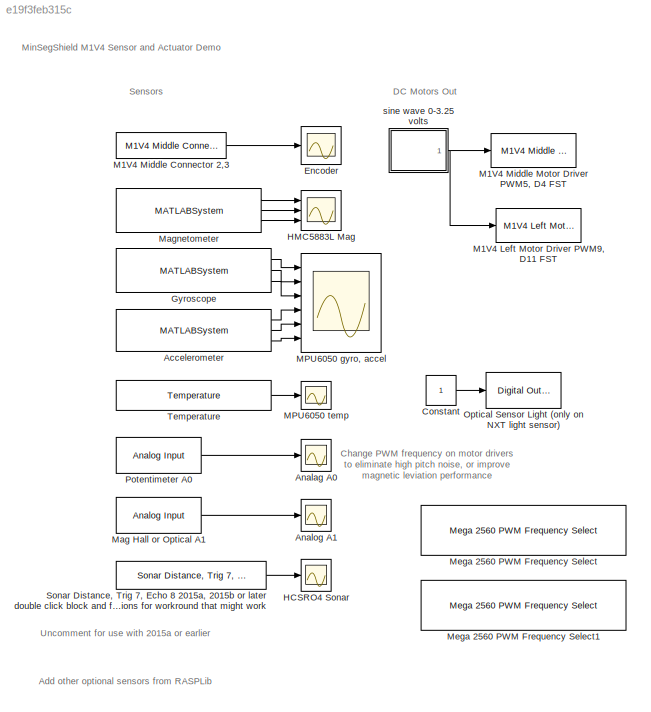
MODEL slx_e19f3feb315c
KIND model
CONFIG AbsTol = auto
CONFIG EnableMultiTasking = on
CONFIG FixedStep = auto
CONFIG MaxStep = auto
CONFIG MinStep = auto
CONFIG RelTol = 1e-3
CONFIG SampleTimeConstraint = Unconstrained
CONFIG Solver = ode45
CONFIG SolverName = ode45
CONFIG StartTime = 0.0
CONFIG StopTime = 10.0
BLOCK [MATLABSystem] Accelerometer
  MaskDisplay = disp('soMPU6050Accel');\nport_label('output',1,'xaccel');\nport_label('output',2,'yaccel');\nport_label('output',3,'zaccel');
  MaskType = soMPU6050Accel
  Ports = [0, 3]
  SimulateUsing = Code generation
  System = soMPU6050Accel
BLOCK [Scope] Analag A0
  Floating = off
  NumInputPorts = 1
  Ports = [1]
  ScopeSpecificationString = C++SS(StrPVP('Location','[188, 60, 612, 275]'),StrPVP('Open','off'),MxPVP('AxesTitles',53,'struct(''axes1'',''%<SignalLabel>'')'),MxPVP('ScopeGraphics',56,'struct(''FigureColor'',''[0.501960784313725 0.501960784313725 0.501960784313725]'',''AxesColor'',''[0 0 0]'',''AxesTickColor'',''[1 1 1]'',''LineColors'',''[1 1 0;1 0 1;0 1 1;1 0 0;0 1 0;0 0 1]'',''LineStyles'',''-|-|-|-|-|-'',''LineWidths'',''...<+352ch>
BLOCK [Scope] Analog A1
  Floating = off
  NumInputPorts = 1
  Ports = [1]
  ScopeSpecificationString = C++SS(StrPVP('Location','[188, 60, 612, 275]'),StrPVP('Open','off'),MxPVP('AxesTitles',53,'struct(''axes1'',''%<SignalLabel>'')'),MxPVP('ScopeGraphics',56,'struct(''FigureColor'',''[0.501960784313725 0.501960784313725 0.501960784313725]'',''AxesColor'',''[0 0 0]'',''AxesTickColor'',''[1 1 1]'',''LineColors'',''[1 1 0;1 0 1;0 1 1;1 0 0;0 1 0;0 0 1]'',''LineStyles'',''-|-|-|-|-|-'',''LineWidths'',''...<+352ch>
BLOCK [Constant] Constant
BLOCK [Scope] Encoder
  Floating = off
  NumInputPorts = 1
  Ports = [1]
  ScopeSpecificationString = C++SS(StrPVP('Location','[126, 60, 539, 390]'),StrPVP('Open','off'),MxPVP('AxesTitles',53,'struct(''axes1'',''%<SignalLabel>'')'),MxPVP('ScopeGraphics',56,'struct(''FigureColor'',''[0.5 0.5 0.5]'',''AxesColor'',''[0 0 0]'',''AxesTickColor'',''[1 1 1]'',''LineColors'',''[1 1 0;1 0 1;0 1 1;1 0 0;0 1 0;0 0 1]'',''LineStyles'',''-|-|-|-|-|-'',''LineWidths'',''[0.5 0.5 0.5 0.5 0.5 0.5]'',''MarkerStyles...<+277ch>
BLOCK [MATLABSystem] Gyroscope
  DLPFmode = 0
  MaskDisplay = disp('soMPU6050Gyro');\nport_label('output',1,'xvel');\nport_label('output',2,'yvel');\nport_label('output',3,'zvel');
  MaskType = soMPU6050Gyro
  Ports = [0, 3]
  System = soMPU6050Gyro
BLOCK [Scope] HCSRO4 Sonar
  Commented = on
  Floating = off
  NumInputPorts = 1
  Ports = [1]
  ScopeSpecificationString = C++SS(StrPVP('Location','[188, 60, 612, 275]'),StrPVP('Open','off'),MxPVP('AxesTitles',53,'struct(''axes1'',''%<SignalLabel>'')'),MxPVP('ScopeGraphics',56,'struct(''FigureColor'',''[0.501960784313725 0.501960784313725 0.501960784313725]'',''AxesColor'',''[0 0 0]'',''AxesTickColor'',''[1 1 1]'',''LineColors'',''[1 1 0;1 0 1;0 1 1;1 0 0;0 1 0;0 0 1]'',''LineStyles'',''-|-|-|-|-|-'',''LineWidths'',''...<+349ch>
BLOCK [Scope] HMC5883L Mag
  Floating = off
  NumInputPorts = 3
  Ports = [3]
  ScopeSpecificationString = C++SS(StrPVP('Location','[486, 69, 1015, 815]'),StrPVP('Open','off'),MxPVP('AxesTitles',53,'struct(''axes1'',''%<SignalLabel>'',''axes2'',''%<SignalLabel>'',''axes3'',''%<SignalLabel>'')'),MxPVP('ScopeGraphics',56,'struct(''FigureColor'',''[0.5 0.5 0.5]'',''AxesColor'',''[0 0 0]'',''AxesTickColor'',''[1 1 1]'',''LineColors'',''[1 1 0;1 0 1;0 1 1;1 0 0;0 1 0;0 0 1]'',''LineStyles'',''-|-|-|-|-|-'',...<+390ch>
BLOCK [Reference] M1V4  Middle Motor Driver PWM5, D4 FST  REF=MinSegLibrary_M1V4/M1V4  Middle Motor Driver
PWM5, D4 FST
  Ports = [1]
  SourceBlock = MinSegLibrary_M1V4/M1V4  Middle Motor Driver\nPWM5, D4 FST
  SourceProductName = Rensselaer Arduino Support Package
  SourceType = Motor Driver
BLOCK [Reference] M1V4 Left Motor Driver PWM9, D11 FST  REF=MinSegLibrary_M1V4/M1V4 Left Motor Driver
PWM9, D11 FST
  Ports = [1]
  SourceBlock = MinSegLibrary_M1V4/M1V4 Left Motor Driver\nPWM9, D11 FST
  SourceProductName = Rensselaer Arduino Support Package
  SourceType = Motor Driver
BLOCK [Reference] M1V4 Middle Connector 2,3  REF=MinSegLibrary_M1V4/M1V4 Middle Connector 2,3
  Ports = [0, 1]
  SourceBlock = MinSegLibrary_M1V4/M1V4 Middle Connector 2,3
  SourceProductName = Rensselaer Arduino Support Package
  SourceType = Encoder_arduino
BLOCK [Scope] MPU6050 gyro, accel
  Floating = off
  NumInputPorts = 6
  Ports = [6]
  ScopeSpecificationString = Simulink.scopes.TimeScopeBlockCfg('CurrentConfiguration', extmgr.ConfigurationSet(extmgr.Configuration('Core','General UI',true),extmgr.Configuration('Core','Source UI',true),extmgr.Configuration('Sources','WiredSimulink',true,'DataLoggingVariableName','ScopeData1','DataLoggingSaveFormat','StructureWithTime','DataLoggingLimitDataPoints',true,'DataLoggingDecimation','1','DataLoggingDecimateData',tr...<+5229ch>
BLOCK [Scope] MPU6050 temp
  Floating = off
  NumInputPorts = 1
  Ports = [1]
  ScopeSpecificationString = C++SS(StrPVP('Location','[17, 60, 307, 271]'),StrPVP('Open','off'),MxPVP('AxesTitles',53,'struct(''axes1'',''%<SignalLabel>'')'),MxPVP('ScopeGraphics',56,'struct(''FigureColor'',''[0.501960784313725 0.501960784313725 0.501960784313725]'',''AxesColor'',''[0 0 0]'',''AxesTickColor'',''[1 1 1]'',''LineColors'',''[1 1 0;1 0 1;0 1 1;1 0 0;0 1 0;0 0 1]'',''LineStyles'',''-|-|-|-|-|-'',''LineWidths'',''[...<+354ch>
BLOCK [Reference] Mag Hall or Optical A1  REF=arduinolib/Analog Input
  Ports = [0, 1]
  SourceBlock = arduinolib/Analog Input
  SourceProductBaseCode = ARDUINO
  SourceProductName = Simulink Support Package for Arduino Hardware
  SourceType = Arduino Analog Input
BLOCK [MATLABSystem] Magnetometer
  MaskDisplay = disp('soHMC5883L');\nport_label('output',1,'xmag');\nport_label('output',2,'ymag');\nport_label('output',3,'zmag');
  MaskType = soHMC5883L
  Ports = [0, 3]
  SimulateUsing = Code generation
  System = soHMC5883L
BLOCK [Reference] Mega 2560 PWM Frequency Select  REF=RASPlib/Mega 2560 PWM Frequency Select
  Commented = on
  Ports = []
  SourceBlock = RASPlib/Mega 2560 PWM Frequency Select
  SourceProductName = Rensselaer Arduino Support Package
BLOCK [Reference] Mega 2560 PWM Frequency Select1  REF=RASPlib/Mega 2560 PWM Frequency Select
  Commented = on
  Ports = []
  SourceBlock = RASPlib/Mega 2560 PWM Frequency Select
  SourceProductName = Rensselaer Arduino Support Package
BLOCK [Reference] Optical Sensor Light (only on NXT light sensor)  REF=arduinolib/Digital Output
  Ports = [1]
  SourceBlock = arduinolib/Digital Output
  SourceProductBaseCode = ARDUINO
  SourceProductName = Simulink Support Package for Arduino Hardware
  SourceType = Arduino Digital Output
BLOCK [Reference] Potentimeter A0  REF=arduinolib/Analog Input
  Ports = [0, 1]
  SourceBlock = arduinolib/Analog Input
  SourceProductBaseCode = ARDUINO
  SourceProductName = Simulink Support Package for Arduino Hardware
  SourceType = Arduino Analog Input
BLOCK [Reference] Sonar Distance, Trig 7, Echo 8 2015a, 2015b or later double click block and follow instructions for workround that might work  REF=MinSegLibrary_M1V4/Sonar Distance, Trig 7, Echo 8 2015a,
2015b or later double click block and follow
instructions for workround that might work
  Commented = on
  Ports = [0, 1]
  SourceBlock = MinSegLibrary_M1V4/Sonar Distance, Trig 7, Echo 8 2015a,\n2015b or later double click block and follow\ninstructions for workround that might work
  SourceProductName = Rensselaer Arduino Support Package
  SourceType = soHCSR04Sonar
BLOCK [Reference] Temperature  REF=RASPlib/Temperature
  Ports = [0, 1]
  SourceBlock = RASPlib/Temperature
  SourceProductName = Rensselaer Arduino Support Package
  SourceType = soMPU6050Temp
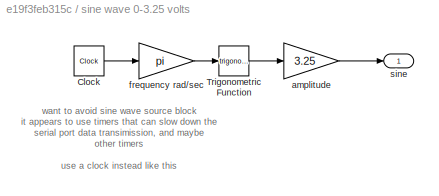
BLOCK [SubSystem] sine wave 0-3.25 volts
  Ports = [0, 1]
  RequestExecContextInheritance = off
BLOCK [Clock] sine wave 0-3.25 volts/Clock
BLOCK [Trigonometry] sine wave 0-3.25 volts/Trigonometric Function
  Ports = [1, 1]
BLOCK [Gain] sine wave 0-3.25 volts/amplitude
  Gain = 3.25
  OutDataTypeStr = Inherit: Inherit via internal rule
  ParamDataTypeStr = Inherit: Inherit via internal rule
  SaturateOnIntegerOverflow = off
BLOCK [Gain] sine wave 0-3.25 volts/frequency rad//sec
  Gain = pi
  OutDataTypeStr = Inherit: Inherit via internal rule
  ParamDataTypeStr = Inherit: Inherit via internal rule
  SaturateOnIntegerOverflow = off
BLOCK [Outport] sine wave 0-3.25 volts/sine
  IconDisplay = Port number
ANNOTATION (root): Add other optional sensors from RASPLib
ANNOTATION (root): Change PWM frequency on motor drivers to eliminate high pitch noise, or improve magnetic leviation performance
ANNOTATION (root): DC Motors Out
ANNOTATION (root): MinSegShield M1V4 Sensor and Actuator Demo
ANNOTATION (root): Sensors
ANNOTATION (root): Uncomment for use with 2015a or earlier
ANNOTATION sine wave 0-3.25 volts: want to avoid sine wave source block it appears to use timers that can slow down the serial port data transimission, and maybe other timers use a clock instead like this
LINE Accelerometer:1 -> MPU6050 gyro, accel:4
LINE Accelerometer:2 -> MPU6050 gyro, accel:5
LINE Accelerometer:3 -> MPU6050 gyro, accel:6
LINE Constant:1 -> Optical Sensor Light (only on NXT light sensor):1
LINE Gyroscope:1 -> MPU6050 gyro, accel:1
LINE Gyroscope:2 -> MPU6050 gyro, accel:2
LINE Gyroscope:3 -> MPU6050 gyro, accel:3
LINE M1V4 Middle Connector 2,3:1 -> Encoder:1
LINE Mag Hall or Optical A1:1 -> Analog A1:1
LINE Magnetometer:1 -> HMC5883L Mag:1
LINE Magnetometer:2 -> HMC5883L Mag:2
LINE Magnetometer:3 -> HMC5883L Mag:3
LINE Potentimeter A0:1 -> Analag A0:1
LINE Sonar Distance, Trig 7, Echo 8 2015a, 2015b or later double click block and follow instructions for workround that might work:1 -> HCSRO4 Sonar:1
LINE Temperature:1 -> MPU6050 temp:1
LINE sine wave 0-3.25 volts/Clock:1 -> sine wave 0-3.25 volts/frequency rad//sec:1
LINE sine wave 0-3.25 volts/Trigonometric Function:1 -> sine wave 0-3.25 volts/amplitude:1
LINE sine wave 0-3.25 volts/amplitude:1 -> sine wave 0-3.25 volts/sine:1
LINE sine wave 0-3.25 volts/frequency rad//sec:1 -> sine wave 0-3.25 volts/Trigonometric Function:1
NET sine wave 0-3.25 volts:1 -> M1V4  Middle Motor Driver PWM5, D4 FST:1, M1V4 Left Motor Driver PWM9, D11 FST:1
note: NET lines group one-source signal fan-out (src -> all destinations, sorted); 1:1 wires keep LINE
